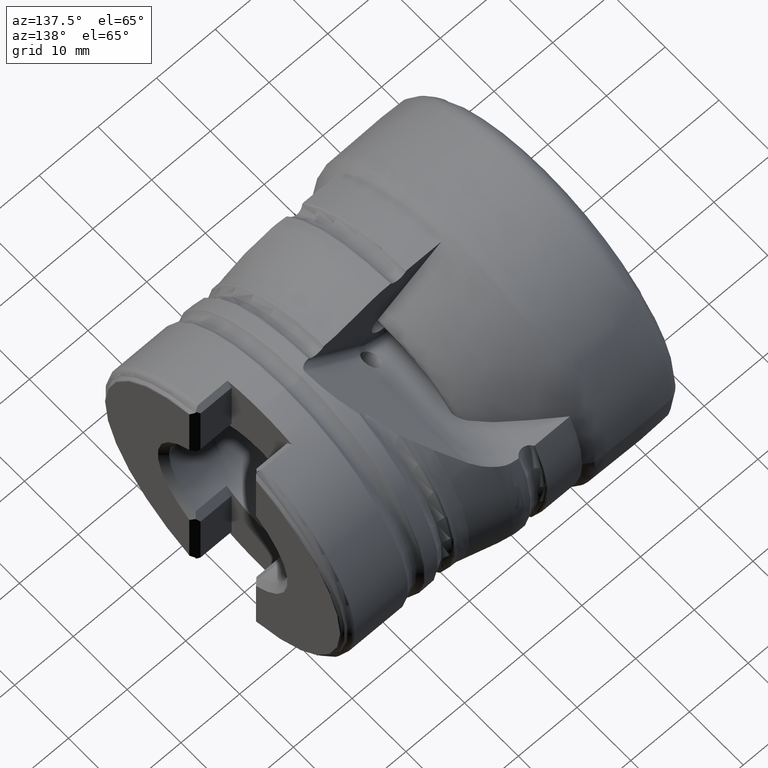
[diagram: clean part render]
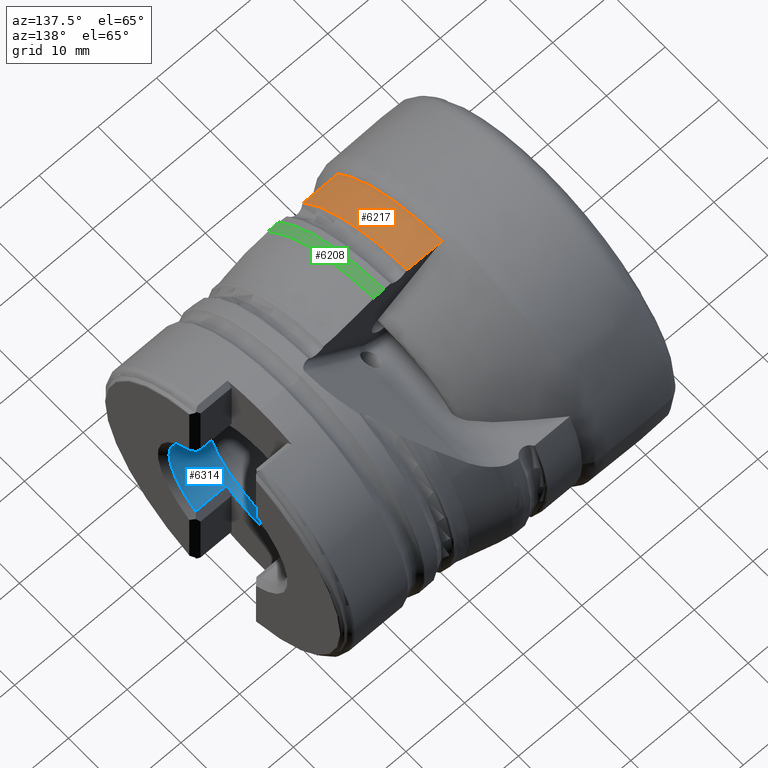
[diagram: same view with three faces highlighted in distinct colors, each labeled with its STEP entity id]
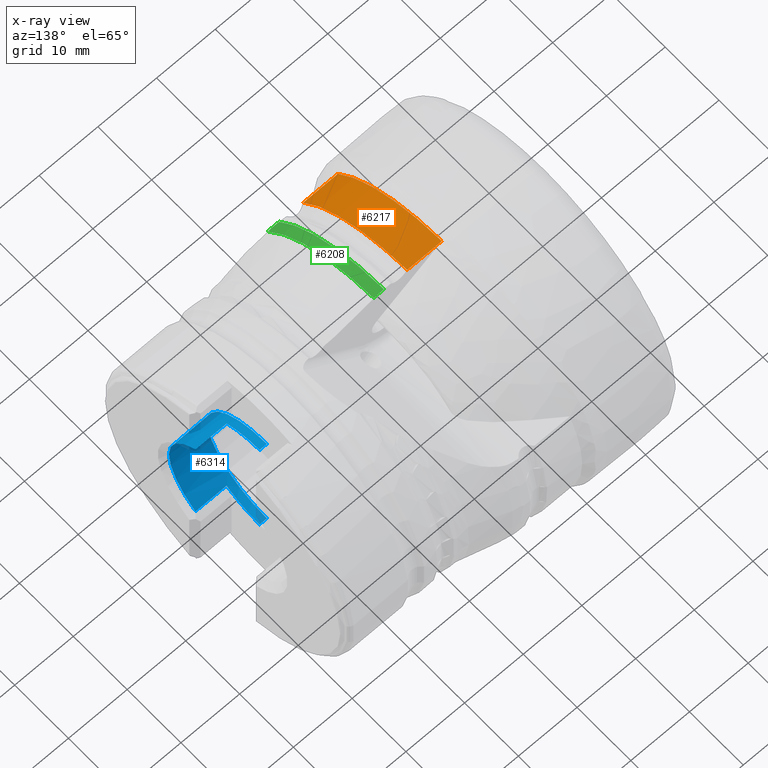
[diagram: x-ray of the same camera — body ghosted, the three highlighted faces saturated]
A machine part, auxiliary view with three faces highlighted in distinct colors.
The next image is the same camera in x-ray (body ghosted, the three faces saturated) — at least one of them is partly hidden behind the body in this view.
Their STEP definitions:

[orange] entity #6217 — the highlighted cylindrical surface (partial cylindrical patch) has radius 25 mm, axis along (-1, -0, -0).
#175 = ORIENTED_EDGE ( 'NONE', *, *, #5735, .T. ) ;
#188 = ORIENTED_EDGE ( 'NONE', *, *, #5718, .T. ) ;
#203 = ORIENTED_EDGE ( 'NONE', *, *, #1786, .F. ) ;
#236 = ORIENTED_EDGE ( 'NONE', *, *, #5753, .F. ) ;
#248 = ORIENTED_EDGE ( 'NONE', *, *, #5772, .F. ) ;
#474 = CARTESIAN_POINT ( 'NONE',  ( 21.26098084827865600, 0.0000000000000000000, 0.0000000000000000000 ) ) ;
#475 = DIRECTION ( 'NONE',  ( -1.000000000000000000, -0.0000000000000000000, -0.0000000000000000000 ) ) ;
#476 = DIRECTION ( 'NONE',  ( 0.0000000000000000000, 0.0000000000000000000, 1.000000000000000000 ) ) ;
#477 = CARTESIAN_POINT ( 'NONE',  ( 0.0000000000000000000, -1.100000000000001600, 24.97578827584827400 ) ) ;
#478 = DIRECTION ( 'NONE',  ( -1.000000000000000000, -0.0000000000000000000, -0.0000000000000000000 ) ) ;
#491 = CARTESIAN_POINT ( 'NONE',  ( 15.38204944200359100, -1.239111233278869600, 24.96937026947665900 ) ) ;
#495 = CARTESIAN_POINT ( 'NONE',  ( 1.583877956326651200E-015, -20.43731804427510600, 14.39847322312846400 ) ) ;
#496 = DIRECTION ( 'NONE',  ( -1.000000000000000000, -0.0000000000000000000, -0.0000000000000000000 ) ) ;
#500 = CARTESIAN_POINT ( 'NONE',  ( 15.35477149008764100, -1.308645526268084100, 24.96572544282618000 ) ) ;
#504 = CARTESIAN_POINT ( 'NONE',  ( 15.40974914298463200, -1.169562319892768000, 24.97272456666572500 ) ) ;
#505 = CARTESIAN_POINT ( 'NONE',  ( 15.43787010956672400, -1.100000000000001600, 24.97578827584827700 ) ) ;
#1025 = CARTESIAN_POINT ( 'NONE',  ( 15.35477149008764100, -1.308645526268084100, 24.96572544282618000 ) ) ;
#1068 = CARTESIAN_POINT ( 'NONE',  ( 15.35477149008764100, -20.43731804427510200, 14.39847322312846600 ) ) ;
#1155 = CARTESIAN_POINT ( 'NONE',  ( 21.26098084827865600, -20.43731804427510200, 14.39847322312846200 ) ) ;
#1167 = CARTESIAN_POINT ( 'NONE',  ( 21.26098084827865600, -1.100000000000001600, 24.97578827584827400 ) ) ;
#1168 = CARTESIAN_POINT ( 'NONE',  ( 15.43787010956672400, -1.100000000000001600, 24.97578827584827700 ) ) ;
#1786 = EDGE_CURVE ( 'NONE', #3827, #3783, #7213, .T. ) ;
#2871 = DIRECTION ( 'NONE',  ( -1.387778780781446200E-016, 1.000000000000000000, 0.0000000000000000000 ) ) ;
#2872 = DIRECTION ( 'NONE',  ( -1.000000000000000000, -1.219038838927857800E-016, 0.0000000000000000000 ) ) ;
#2873 = CARTESIAN_POINT ( 'NONE',  ( 15.35477149008764100, -6.179815690781517700E-015, 0.0000000000000000000 ) ) ;
#3471 = CIRCLE ( 'NONE', #6486, 25.00000000000000000 ) ;
#3480 = LINE ( 'NONE', #477, #3482 ) ;
#3482 = VECTOR ( 'NONE', #478, 1000.000000000000000 ) ;
#3487 = LINE ( 'NONE', #495, #3490 ) ;
#3490 = VECTOR ( 'NONE', #496, 1000.000000000000000 ) ;
#3572 = CYLINDRICAL_SURFACE ( 'NONE', #6539, 25.00000000000000000 ) ;
#3575 = FACE_OUTER_BOUND ( 'NONE', #7084, .T. ) ;
#3783 = VERTEX_POINT ( 'NONE', #1025 ) ;
#3827 = VERTEX_POINT ( 'NONE', #1068 ) ;
#3914 = VERTEX_POINT ( 'NONE', #1155 ) ;
#3926 = VERTEX_POINT ( 'NONE', #1167 ) ;
#3927 = VERTEX_POINT ( 'NONE', #1168 ) ;
#4333 = DIRECTION ( 'NONE',  ( 0.0000000000000000000, 0.0000000000000000000, 1.000000000000000000 ) ) ;
#4334 = CARTESIAN_POINT ( 'NONE',  ( 0.0000000000000000000, 0.0000000000000000000, 0.0000000000000000000 ) ) ;
#4335 = DIRECTION ( 'NONE',  ( -1.000000000000000000, -0.0000000000000000000, -0.0000000000000000000 ) ) ;
#5718 = EDGE_CURVE ( 'NONE', #3914, #3926, #3471, .T. ) ;
#5735 = EDGE_CURVE ( 'NONE', #3926, #3927, #3480, .T. ) ;
#5753 = EDGE_CURVE ( 'NONE', #3914, #3827, #3487, .T. ) ;
#5772 = EDGE_CURVE ( 'NONE', #3783, #3927, #7370, .T. ) ;
#6217 = ADVANCED_FACE ( 'NONE', ( #3575 ), #3572, .T. ) ;
#6366 = AXIS2_PLACEMENT_3D ( 'NONE', #2873, #2872, #2871 ) ;
#6486 = AXIS2_PLACEMENT_3D ( 'NONE', #474, #475, #476 ) ;
#6539 = AXIS2_PLACEMENT_3D ( 'NONE', #4334, #4335, #4333 ) ;
#7084 = EDGE_LOOP ( 'NONE', ( #203, #236, #188, #175, #248 ) ) ;
#7213 = CIRCLE ( 'NONE', #6366, 24.99999999999999300 ) ;
#7370 =( BOUNDED_CURVE ( )  B_SPLINE_CURVE ( 3, ( #500, #491, #504, #505 ),
 .UNSPECIFIED., .F., .F. ) 
 B_SPLINE_CURVE_WITH_KNOTS ( ( 4, 4 ),
 ( 0.2637653746145097200, 0.2721209208062832500 ),
 .UNSPECIFIED. ) 
 CURVE ( )  GEOMETRIC_REPRESENTATION_ITEM ( )  RATIONAL_B_SPLINE_CURVE ( ( 1.000000000000000000, 0.9999941820791150600, 0.9999941820791150600, 1.000000000000000000 ) ) 
 REPRESENTATION_ITEM ( '' )  );

[blue] entity #6314 — the highlighted cylindrical surface (partial cylindrical patch) has radius 11.075 mm, axis along (-1, -0, -0).
#108 = ORIENTED_EDGE ( 'NONE', *, *, #1813, .F. ) ;
#133 = ORIENTED_EDGE ( 'NONE', *, *, #1826, .F. ) ;
#136 = ORIENTED_EDGE ( 'NONE', *, *, #1825, .T. ) ;
#152 = ORIENTED_EDGE ( 'NONE', *, *, #1763, .T. ) ;
#153 = ORIENTED_EDGE ( 'NONE', *, *, #1805, .T. ) ;
#169 = ORIENTED_EDGE ( 'NONE', *, *, #1818, .F. ) ;
#172 = ORIENTED_EDGE ( 'NONE', *, *, #1764, .F. ) ;
#182 = ORIENTED_EDGE ( 'NONE', *, *, #1796, .T. ) ;
#992 = CARTESIAN_POINT ( 'NONE',  ( 52.72299999999999900, -6.140296733282866600, -9.216961594106582100 ) ) ;
#1033 = CARTESIAN_POINT ( 'NONE',  ( 46.17300000000000200, 0.0000000000000000000, 11.07499999999999900 ) ) ;
#1065 = CARTESIAN_POINT ( 'NONE',  ( 46.17300000000000200, 1.356296330055693600E-015, -11.07499999999999900 ) ) ;
#1187 = CARTESIAN_POINT ( 'NONE',  ( 47.42300000000000200, 0.0000000000000000000, 11.07499999999999900 ) ) ;
#1188 = CARTESIAN_POINT ( 'NONE',  ( 47.42300000000000200, 1.356296330055693600E-015, -11.07499999999999900 ) ) ;
#1198 = CARTESIAN_POINT ( 'NONE',  ( 47.42300000000000200, -6.140296733282866600, -9.216961594106582100 ) ) ;
#1202 = CARTESIAN_POINT ( 'NONE',  ( 47.42300000000000200, -6.140296733282869300, 9.216961594106580300 ) ) ;
#1205 = CARTESIAN_POINT ( 'NONE',  ( 52.72299999999999900, -6.140296733282867500, 9.216961594106582100 ) ) ;
#1763 = EDGE_CURVE ( 'NONE', #3947, #3824, #7191, .T. ) ;
#1764 = EDGE_CURVE ( 'NONE', #3946, #3791, #7193, .T. ) ;
#1796 = EDGE_CURVE ( 'NONE', #3961, #3964, #7216, .T. ) ;
#1805 = EDGE_CURVE ( 'NONE', #3824, #3791, #7221, .T. ) ;
#1813 = EDGE_CURVE ( 'NONE', #3947, #3957, #7229, .T. ) ;
#1818 = EDGE_CURVE ( 'NONE', #3961, #3946, #7235, .T. ) ;
#1825 = EDGE_CURVE ( 'NONE', #3746, #3957, #7249, .T. ) ;
#1826 = EDGE_CURVE ( 'NONE', #3746, #3964, #7251, .T. ) ;
#2723 = DIRECTION ( 'NONE',  ( 0.0000000000000000000, 0.0000000000000000000, 1.000000000000000000 ) ) ;
#2724 = DIRECTION ( 'NONE',  ( -1.000000000000000000, -0.0000000000000000000, -0.0000000000000000000 ) ) ;
#2725 = CARTESIAN_POINT ( 'NONE',  ( 46.17300000000000200, 0.0000000000000000000, 0.0000000000000000000 ) ) ;
#2816 = DIRECTION ( 'NONE',  ( 1.000000000000000000, 0.0000000000000000000, 0.0000000000000000000 ) ) ;
#2817 = CARTESIAN_POINT ( 'NONE',  ( 0.0000000000000000000, -6.140296733282869300, 9.216961594106580300 ) ) ;
#2999 = DIRECTION ( 'NONE',  ( -1.000000000000000000, -0.0000000000000000000, -0.0000000000000000000 ) ) ;
#3000 = DIRECTION ( 'NONE',  ( -1.000000000000000000, -0.0000000000000000000, -0.0000000000000000000 ) ) ;
#3004 = CARTESIAN_POINT ( 'NONE',  ( 0.0000000000000000000, 1.356296330055693600E-015, -11.07499999999999900 ) ) ;
#3005 = CARTESIAN_POINT ( 'NONE',  ( 0.0000000000000000000, 0.0000000000000000000, 11.07499999999999900 ) ) ;
#3108 = DIRECTION ( 'NONE',  ( 0.0000000000000000000, 0.0000000000000000000, 1.000000000000000000 ) ) ;
#3112 = CARTESIAN_POINT ( 'NONE',  ( 47.42300000000000200, 0.0000000000000000000, 0.0000000000000000000 ) ) ;
#3116 = CARTESIAN_POINT ( 'NONE',  ( 47.42300000000000200, 0.0000000000000000000, 0.0000000000000000000 ) ) ;
#3127 = DIRECTION ( 'NONE',  ( 0.0000000000000000000, 0.0000000000000000000, 1.000000000000000000 ) ) ;
#3140 = CARTESIAN_POINT ( 'NONE',  ( 0.0000000000000000000, -6.140296733282866600, -9.216961594106582100 ) ) ;
#3141 = DIRECTION ( 'NONE',  ( 0.0000000000000000000, 0.0000000000000000000, 1.000000000000000000 ) ) ;
#3156 = DIRECTION ( 'NONE',  ( -1.000000000000000000, 0.0000000000000000000, 0.0000000000000000000 ) ) ;
#3165 = DIRECTION ( 'NONE',  ( -1.000000000000000000, -0.0000000000000000000, -0.0000000000000000000 ) ) ;
#3169 = DIRECTION ( 'NONE',  ( -1.000000000000000000, 0.0000000000000000000, 0.0000000000000000000 ) ) ;
#3176 = CARTESIAN_POINT ( 'NONE',  ( 52.72299999999999900, 0.0000000000000000000, 0.0000000000000000000 ) ) ;
#3192 = DIRECTION ( 'NONE',  ( -1.000000000000000000, -0.0000000000000000000, -0.0000000000000000000 ) ) ;
#3746 = VERTEX_POINT ( 'NONE', #992 ) ;
#3791 = VERTEX_POINT ( 'NONE', #1033 ) ;
#3824 = VERTEX_POINT ( 'NONE', #1065 ) ;
#3946 = VERTEX_POINT ( 'NONE', #1187 ) ;
#3947 = VERTEX_POINT ( 'NONE', #1188 ) ;
#3957 = VERTEX_POINT ( 'NONE', #1198 ) ;
#3961 = VERTEX_POINT ( 'NONE', #1202 ) ;
#3964 = VERTEX_POINT ( 'NONE', #1205 ) ;
#4836 = FACE_OUTER_BOUND ( 'NONE', #7122, .T. ) ;
#4841 = CYLINDRICAL_SURFACE ( 'NONE', #6633, 11.07499999999999900 ) ;
#5655 = DIRECTION ( 'NONE',  ( 0.0000000000000000000, 0.0000000000000000000, 1.000000000000000000 ) ) ;
#5656 = CARTESIAN_POINT ( 'NONE',  ( 0.0000000000000000000, 0.0000000000000000000, 0.0000000000000000000 ) ) ;
#5657 = DIRECTION ( 'NONE',  ( -1.000000000000000000, -0.0000000000000000000, -0.0000000000000000000 ) ) ;
#6314 = ADVANCED_FACE ( 'NONE', ( #4836 ), #4841, .F. ) ;
#6370 = AXIS2_PLACEMENT_3D ( 'NONE', #2725, #2724, #2723 ) ;
#6373 = AXIS2_PLACEMENT_3D ( 'NONE', #3116, #3169, #3108 ) ;
#6377 = AXIS2_PLACEMENT_3D ( 'NONE', #3112, #3156, #3127 ) ;
#6380 = AXIS2_PLACEMENT_3D ( 'NONE', #3176, #3192, #3141 ) ;
#6633 = AXIS2_PLACEMENT_3D ( 'NONE', #5656, #5657, #5655 ) ;
#7122 = EDGE_LOOP ( 'NONE', ( #108, #152, #153, #172, #169, #182, #133, #136 ) ) ;
#7191 = LINE ( 'NONE', #3004, #7196 ) ;
#7193 = LINE ( 'NONE', #3005, #7198 ) ;
#7196 = VECTOR ( 'NONE', #3000, 1000.000000000000000 ) ;
#7198 = VECTOR ( 'NONE', #2999, 1000.000000000000000 ) ;
#7216 = LINE ( 'NONE', #2817, #7218 ) ;
#7218 = VECTOR ( 'NONE', #2816, 1000.000000000000000 ) ;
#7221 = CIRCLE ( 'NONE', #6370, 11.07499999999999900 ) ;
#7229 = CIRCLE ( 'NONE', #6373, 11.07499999999999900 ) ;
#7235 = CIRCLE ( 'NONE', #6377, 11.07499999999999900 ) ;
#7249 = LINE ( 'NONE', #3140, #7252 ) ;
#7251 = CIRCLE ( 'NONE', #6380, 11.07499999999999900 ) ;
#7252 = VECTOR ( 'NONE', #3165, 1000.000000000000000 ) ;

[green] entity #6208 — the highlighted toroidal blend (fillet) surface has major radius 18.1604 mm and minor (blend) radius 6.8396 mm.
#318 = EDGE_LOOP ( 'NONE', ( #7470, #7463, #7468, #4933 ) ) ;
#502 = CARTESIAN_POINT ( 'NONE',  ( 26.94299999999999800, -1.100000000000001600, 24.75577047689940000 ) ) ;
#503 = CARTESIAN_POINT ( 'NONE',  ( 26.66097124431230000, -1.100000000000001600, 24.82912172169497800 ) ) ;
#525 = CARTESIAN_POINT ( 'NONE',  ( 26.09221795062493100, -1.100000000000001600, 24.93868489061294700 ) ) ;
#526 = CARTESIAN_POINT ( 'NONE',  ( 25.51430306312330000, -1.100000000000001900, 24.97578827584829900 ) ) ;
#527 = CARTESIAN_POINT ( 'NONE',  ( 25.22299999999999900, -1.100000000000001600, 24.97578827584827700 ) ) ;
#842 = CARTESIAN_POINT ( 'NONE',  ( 26.94299999999999800, -20.81917323522427000, 13.43950139352815900 ) ) ;
#849 = CARTESIAN_POINT ( 'NONE',  ( 26.41261001430011400, -20.75790169938598600, 13.78851617176468000 ) ) ;
#853 = CARTESIAN_POINT ( 'NONE',  ( 25.84342031818829000, -20.68408949804978600, 14.04254221232822900 ) ) ;
#854 = CARTESIAN_POINT ( 'NONE',  ( 25.22299999999999900, -20.59527035514029000, 14.17162090230611000 ) ) ;
#1039 = CARTESIAN_POINT ( 'NONE',  ( 25.22299999999999900, -20.59527035514029000, 14.17162090230611000 ) ) ;
#1043 = CARTESIAN_POINT ( 'NONE',  ( 26.94299999999999800, -20.81917323522427000, 13.43950139352815900 ) ) ;
#1169 = CARTESIAN_POINT ( 'NONE',  ( 25.22299999999999900, -1.100000000000001600, 24.97578827584827700 ) ) ;
#1173 = CARTESIAN_POINT ( 'NONE',  ( 26.94299999999999800, -1.100000000000001600, 24.75577047689940000 ) ) ;
#1624 = CARTESIAN_POINT ( 'NONE',  ( 26.94299999999999800, 0.0000000000000000000, 0.0000000000000000000 ) ) ;
#1625 = DIRECTION ( 'NONE',  ( -1.000000000000000000, -0.0000000000000000000, -0.0000000000000000000 ) ) ;
#1626 = DIRECTION ( 'NONE',  ( 0.0000000000000000000, 0.0000000000000000000, 1.000000000000000000 ) ) ;
#1627 = CARTESIAN_POINT ( 'NONE',  ( 25.22299999999999900, 0.0000000000000000000, 0.0000000000000000000 ) ) ;
#1628 = DIRECTION ( 'NONE',  ( -1.000000000000000000, -0.0000000000000000000, -0.0000000000000000000 ) ) ;
#1629 = DIRECTION ( 'NONE',  ( 0.0000000000000000000, 0.0000000000000000000, 1.000000000000000000 ) ) ;
#2030 = EDGE_CURVE ( 'NONE', #3801, #3932, #3357, .T. ) ;
#2031 = EDGE_CURVE ( 'NONE', #3797, #3928, #3359, .T. ) ;
#2106 = EDGE_CURVE ( 'NONE', #3801, #3797, #7402, .T. ) ;
#3357 = CIRCLE ( 'NONE', #6454, 24.78019717243839500 ) ;
#3359 = CIRCLE ( 'NONE', #6455, 25.00000000000000000 ) ;
#3565 = FACE_OUTER_BOUND ( 'NONE', #318, .T. ) ;
#3566 = TOROIDAL_SURFACE ( 'NONE', #6528, 18.16043083621994100, 6.839569163780058900 ) ;
#3797 = VERTEX_POINT ( 'NONE', #1039 ) ;
#3801 = VERTEX_POINT ( 'NONE', #1043 ) ;
#3928 = VERTEX_POINT ( 'NONE', #1169 ) ;
#3932 = VERTEX_POINT ( 'NONE', #1173 ) ;
#4301 = CARTESIAN_POINT ( 'NONE',  ( 25.22299999999999900, 0.0000000000000000000, 0.0000000000000000000 ) ) ;
#4302 = DIRECTION ( 'NONE',  ( -1.000000000000000000, -0.0000000000000000000, -0.0000000000000000000 ) ) ;
#4306 = DIRECTION ( 'NONE',  ( 0.0000000000000000000, 0.0000000000000000000, 1.000000000000000000 ) ) ;
#4933 = ORIENTED_EDGE ( 'NONE', *, *, #2031, .F. ) ;
#5785 = EDGE_CURVE ( 'NONE', #3932, #3928, #7366, .T. ) ;
#6208 = ADVANCED_FACE ( 'NONE', ( #3565 ), #3566, .T. ) ;
#6454 = AXIS2_PLACEMENT_3D ( 'NONE', #1624, #1625, #1626 ) ;
#6455 = AXIS2_PLACEMENT_3D ( 'NONE', #1627, #1628, #1629 ) ;
#6528 = AXIS2_PLACEMENT_3D ( 'NONE', #4301, #4302, #4306 ) ;
#7366 = B_SPLINE_CURVE_WITH_KNOTS ( 'NONE', 3,
 ( #502, #503, #525, #526, #527 ),
 .UNSPECIFIED., .F., .F.,
 ( 4, 1, 4 ),
 ( 0.01867192247273032100, 0.01953892395224176400, 0.02040592543175320400 ),
 .UNSPECIFIED. ) ;
#7402 = B_SPLINE_CURVE_WITH_KNOTS ( 'NONE', 3,
 ( #842, #849, #853, #854 ),
 .UNSPECIFIED., .F., .F.,
 ( 4, 4 ),
 ( 2.366447876030434500E-007, 0.001882929257732035300 ),
 .UNSPECIFIED. ) ;
#7463 = ORIENTED_EDGE ( 'NONE', *, *, #2030, .T. ) ;
#7468 = ORIENTED_EDGE ( 'NONE', *, *, #5785, .T. ) ;
#7470 = ORIENTED_EDGE ( 'NONE', *, *, #2106, .F. ) ;